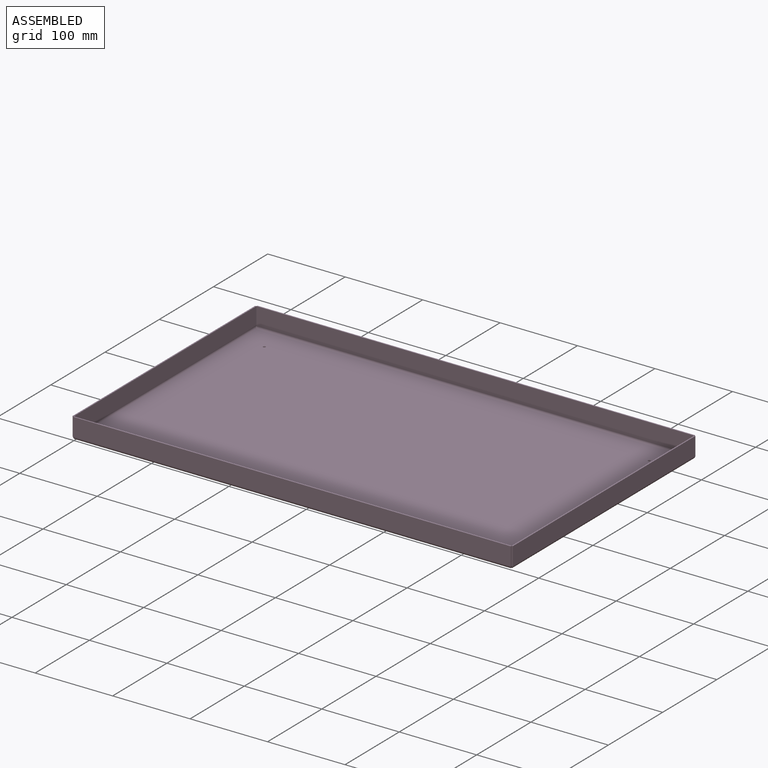
[diagram: assembled view]
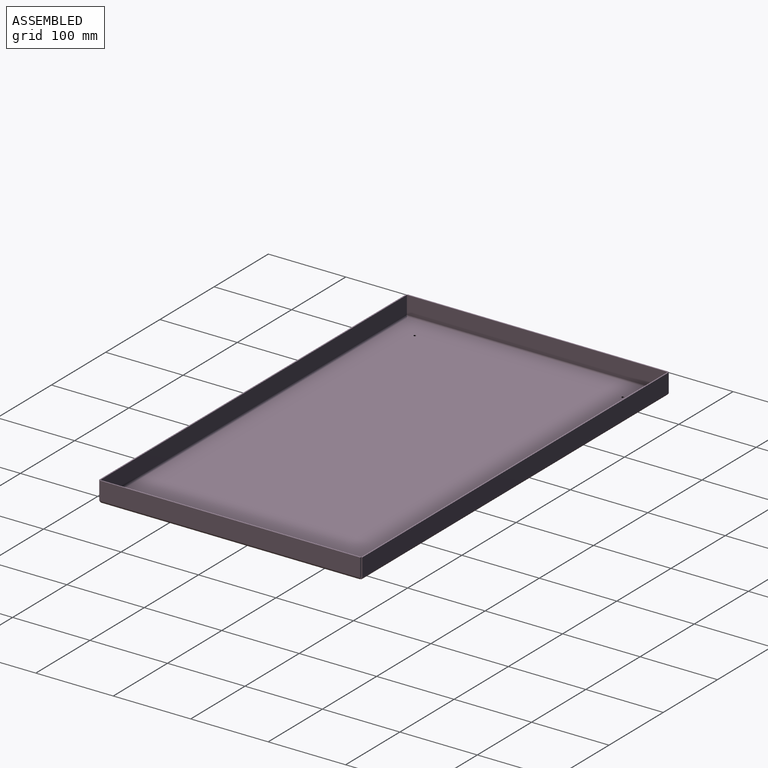
[diagram: assembled view, second angle]
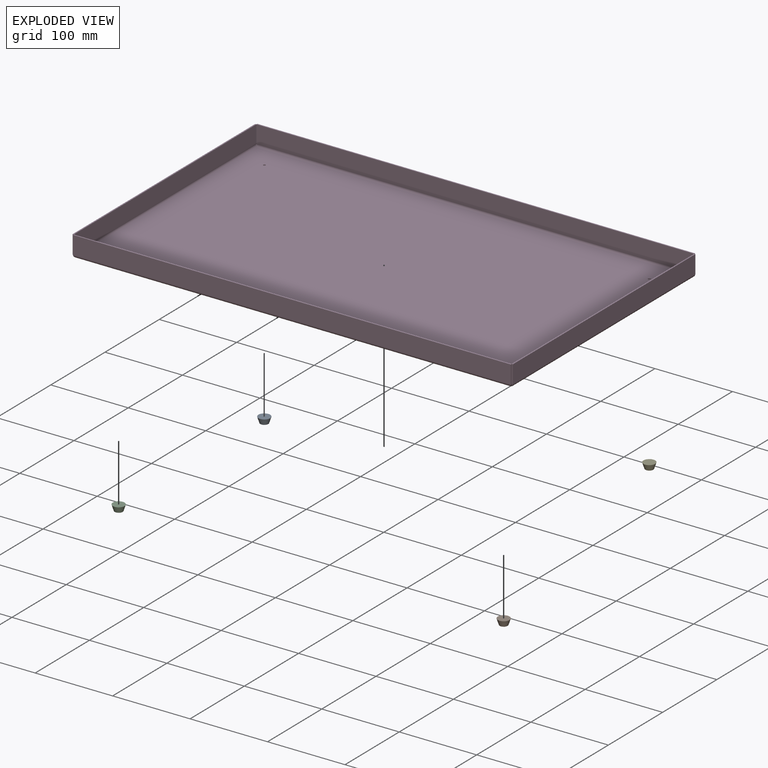
[diagram: exploded view]
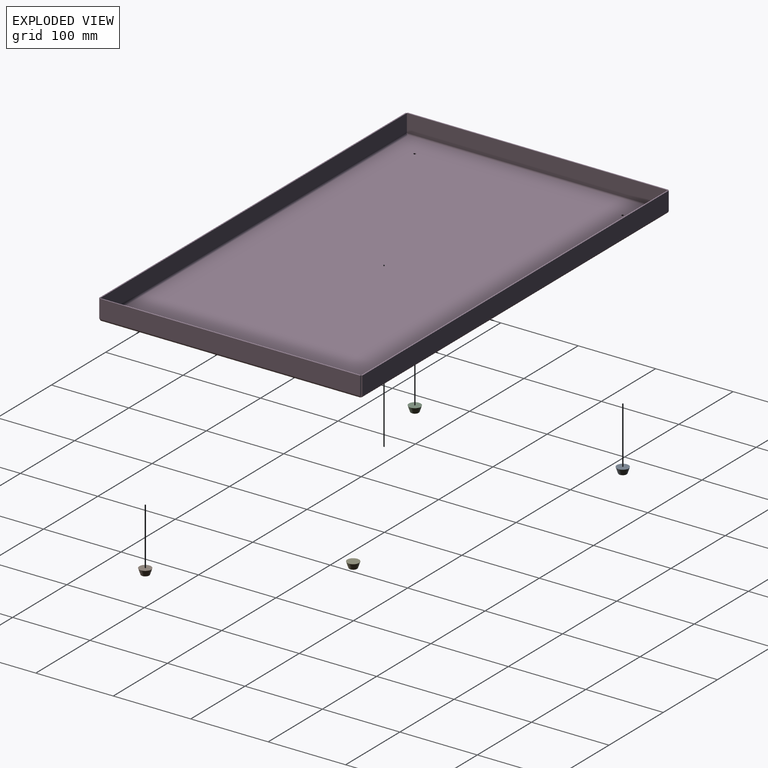
[diagram: exploded view, second angle]
ASSEMBLY  parts=5 mates=4
PART A: 4 faces, bbox 15.2x15.2x7.6 mm
  f0: plane 9.79x9.79mm, normal (0,0,-1), area 75.3mm2, adj f3
  f1: cone r=5.08mm half-angle=18.4deg, axis (0,0,1), area 314.6mm2, adj f2,f3
  f2: plane 15.24x15.24mm, normal (0,0,1), area 182.4mm2, adj f1
  f3: torus R=4.9mm, axis (0,0,-1), area 10mm2, adj f0,f1
PART B: same geometry as A
PART C: same geometry as A
PART D: 46 faces, bbox 568.3x339.7x27 mm
  f0: plane 565.1x1.59mm, normal (0,0,1), area 897.1mm2, adj f1,f2,f3,f4
  f1: plane 23.11x1.59mm, normal (1,0,0), area 36.7mm2, adj f0,f3,f4,f42
  f2: plane 23.11x1.59mm, normal (-1,0,0), area 36.7mm2, adj f0,f3,f4,f43
  f3: plane 565.1x23.11mm, normal (0,1,0), area 13061.7mm2, adj f0,f1,f2,f44
  f4: plane 565.1x23.11mm, normal (0,-1,0), area 13061.7mm2, adj f0,f1,f2,f45
  f5: cylinder r=1.52mm len=3.05mm, axis (0,0,1), area 15.2mm2, adj f9,f10
  f6: cylinder r=1.52mm len=3.05mm, axis (0,0,1), area 15.2mm2, adj f9,f10
  f7: cylinder r=1.52mm len=3.05mm, axis (0,0,1), area 15.2mm2, adj f9,f10
  f8: cylinder r=1.52mm len=3.05mm, axis (0,0,1), area 15.2mm2, adj f9,f10
  f9: plane 560.58x331.98mm, normal (0,0,-1), area 186070.4mm2, adj f5,f6,f7,f8,f11,f12,f13,f14
  f10: plane 560.58x331.98mm, normal (0,0,1), area 186070.4mm2, adj f5,f6,f7,f8,f11,f12,f13,f14
  f11: plane 1.59x0.02mm, normal (0.71,0.71,0), area 0mm2, adj f9,f10,f39,f42
  f12: plane 1.59x0.02mm, normal (0.71,-0.71,0), area 0mm2, adj f9,f10,f20,f38
  f13: plane 1.59x0.02mm, normal (-0.71,-0.71,0), area 0mm2, adj f9,f10,f21,f29
  f14: plane 1.59x0.02mm, normal (-0.71,0.71,0), area 0mm2, adj f9,f10,f30,f43
  f15: plane 565.1x1.59mm, normal (0,0,1), area 897.1mm2, adj f16,f17,f18,f19
  f16: plane 23.11x1.59mm, normal (-1,0,0), area 36.7mm2, adj f15,f18,f19,f21
  f17: plane 23.11x1.59mm, normal (1,0,0), area 36.7mm2, adj f15,f18,f19,f20
  f18: plane 565.1x23.11mm, normal (0,-1,0), area 13061.7mm2, adj f15,f16,f17,f22
  f19: plane 565.1x23.11mm, normal (0,1,0), area 13061.7mm2, adj f15,f16,f17,f23
  f20: bspline ~3.87x3.87mm, area 8.7mm2, adj f12,f17,f22,f23
  f21: bspline ~3.87x3.87mm, area 8.6mm2, adj f13,f16,f22,f23
  f22: cylinder r=3.87mm len=565.1mm, axis (1,0,0), area 3428.3mm2, adj f9,f18,f20,f21
  f23: cylinder r=2.29mm len=565.1mm, axis (1,0,0), area 2023.3mm2, adj f10,f19,f20,f21
  f24: plane 336.5x1.59mm, normal (0,0,1), area 534.2mm2, adj f25,f26,f27,f28
  f25: plane 23.11x1.59mm, normal (0,1,0), area 36.7mm2, adj f24,f27,f28,f30
  f26: plane 23.11x1.59mm, normal (0,-1,0), area 36.7mm2, adj f24,f27,f28,f29
  f27: plane 336.5x23.11mm, normal (-1,0,0), area 7777.8mm2, adj f24,f25,f26,f31
  f28: plane 336.5x23.11mm, normal (1,0,0), area 7777.8mm2, adj f24,f25,f26,f32
  f29: bspline ~3.87x3.87mm, area 8.7mm2, adj f13,f26,f31,f32
  f30: bspline ~3.87x3.87mm, area 8.6mm2, adj f14,f25,f31,f32
  f31: cylinder r=3.87mm len=336.5mm, axis (0,-1,0), area 2037.4mm2, adj f9,f27,f29,f30
  f32: cylinder r=2.29mm len=336.5mm, axis (0,-1,0), area 1202.4mm2, adj f10,f28,f29,f30
  f33: plane 336.5x1.59mm, normal (0,0,1), area 534.2mm2, adj f34,f35,f36,f37
  f34: plane 23.11x1.59mm, normal (0,-1,0), area 36.7mm2, adj f33,f36,f37,f38
  f35: plane 23.11x1.59mm, normal (0,1,0), area 36.7mm2, adj f33,f36,f37,f39
  f36: plane 336.5x23.11mm, normal (1,0,0), area 7777.8mm2, adj f33,f34,f35,f40
  f37: plane 336.5x23.11mm, normal (-1,0,0), area 7777.8mm2, adj f33,f34,f35,f41
  f38: bspline ~3.87x3.87mm, area 8.6mm2, adj f12,f34,f40,f41
  f39: bspline ~3.87x3.87mm, area 8.7mm2, adj f11,f35,f40,f41
  f40: cylinder r=3.87mm len=336.5mm, axis (0,-1,0), area 2037.4mm2, adj f9,f36,f38,f39
  f41: cylinder r=2.29mm len=336.5mm, axis (0,-1,0), area 1202.4mm2, adj f10,f37,f38,f39
  f42: bspline ~3.87x3.87mm, area 8.6mm2, adj f1,f11,f44,f45
  f43: bspline ~3.87x3.87mm, area 8.7mm2, adj f2,f14,f44,f45
  f44: cylinder r=3.87mm len=565.1mm, axis (1,0,0), area 3428.3mm2, adj f3,f9,f42,f43
  f45: cylinder r=2.29mm len=565.1mm, axis (1,0,0), area 2023.2mm2, adj f4,f10,f42,f43
PART E: same geometry as A
PLACE A t=(-248.12,134.03,-21.79)mm
PLACE B t=(248.96,-134.45,-21.79)mm
PLACE C t=(-248.12,-134.45,-21.79)mm
PLACE D t=(0.42,-0.21,-12.59)mm fixed
PLACE E t=(248.96,134.03,-21.79)mm
MATE fastened D.f7 <-> E.f1  axis (0,0,-1) through (248.96,134.03,-14.17)mm
MATE fastened A.f1 <-> D.f8  axis (0,0,1) through (-248.12,134.03,-14.17)mm
MATE fastened D.f5 <-> C.f1  axis (0,0,-1) through (-248.12,-134.45,-14.17)mm
MATE fastened D.f6 <-> B.f1  axis (0,0,-1) through (248.96,-134.45,-14.17)mm
